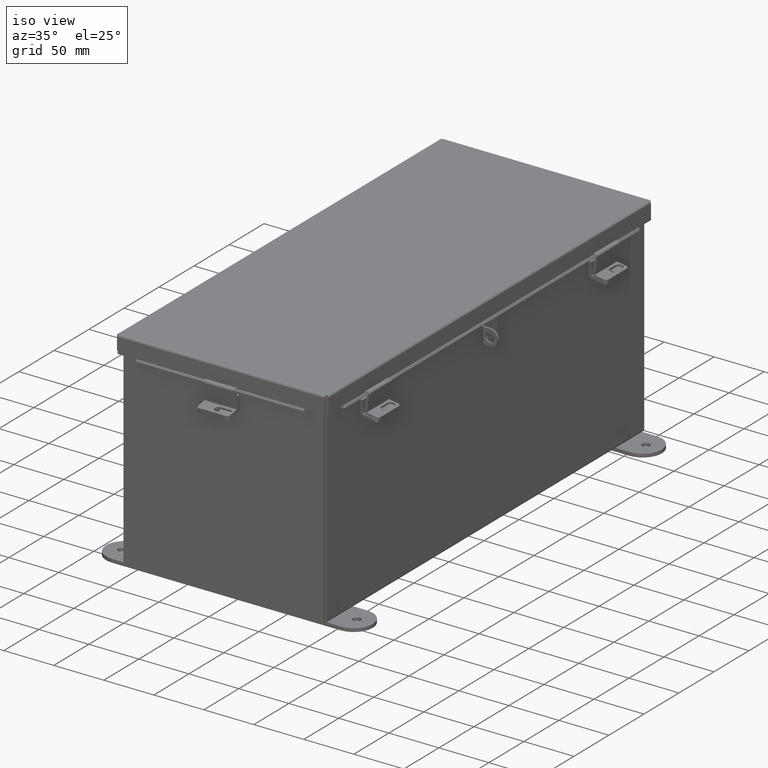
[diagram: clean part render]
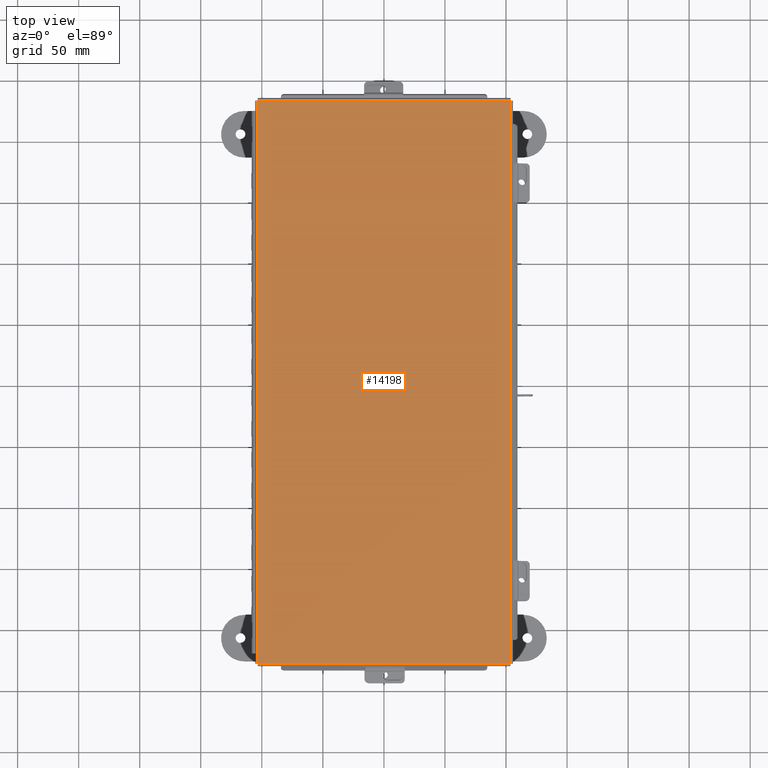
[diagram: tour spotlight — one face highlighted and labeled with its STEP entity id]
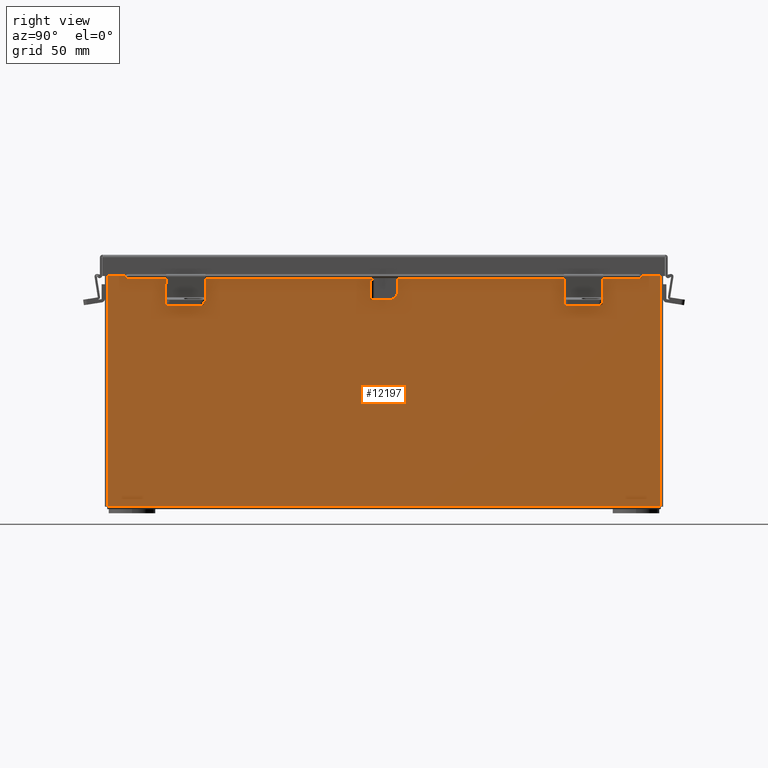
[diagram: tour spotlight — one face highlighted and labeled with its STEP entity id]
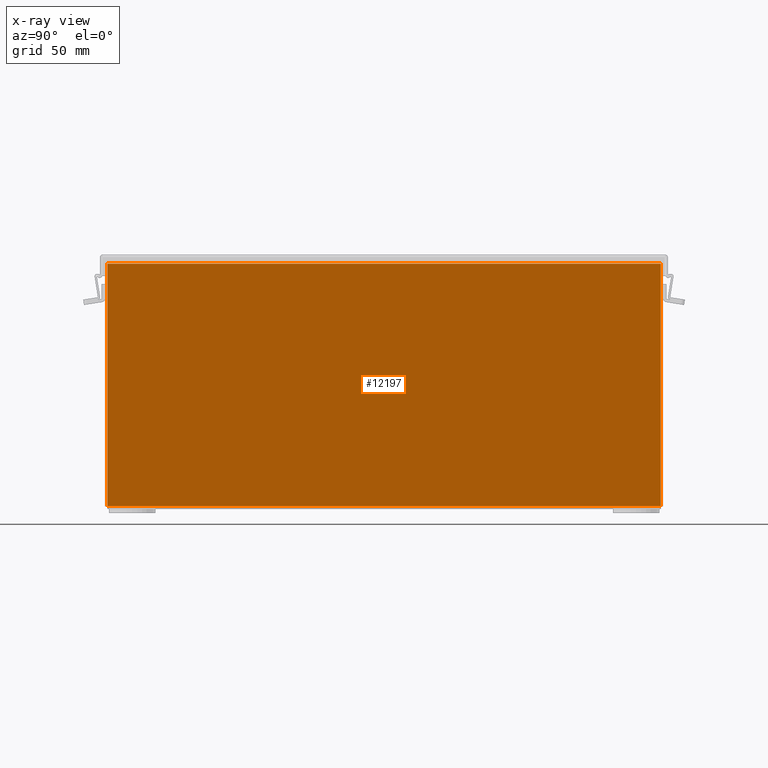
[diagram: x-ray of the same camera — body ghosted, this tour face saturated]
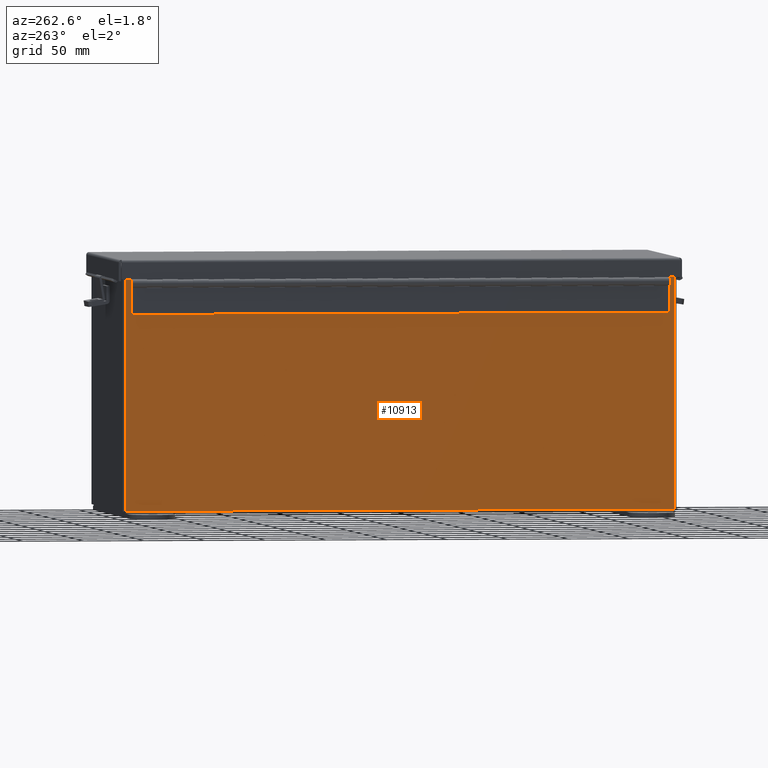
[diagram: tour spotlight — one face highlighted and labeled with its STEP entity id]
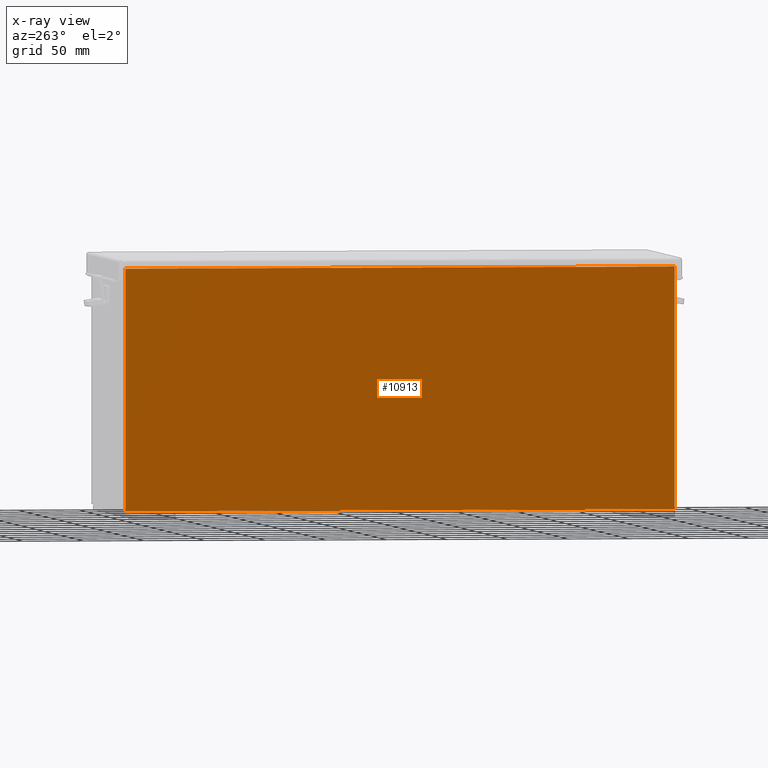
[diagram: x-ray of the same camera — body ghosted, this tour face saturated]
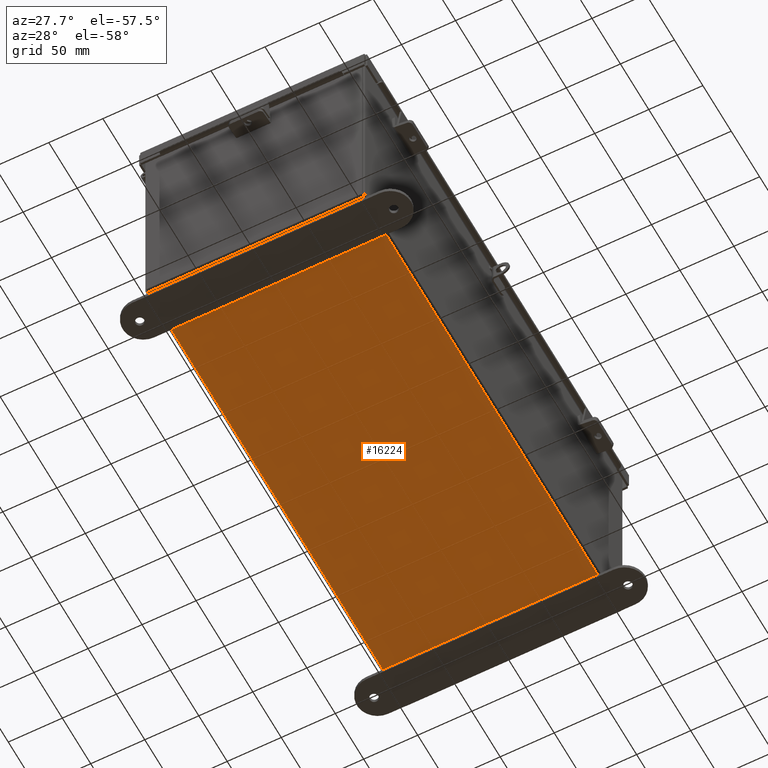
[diagram: tour spotlight — one face highlighted and labeled with its STEP entity id]
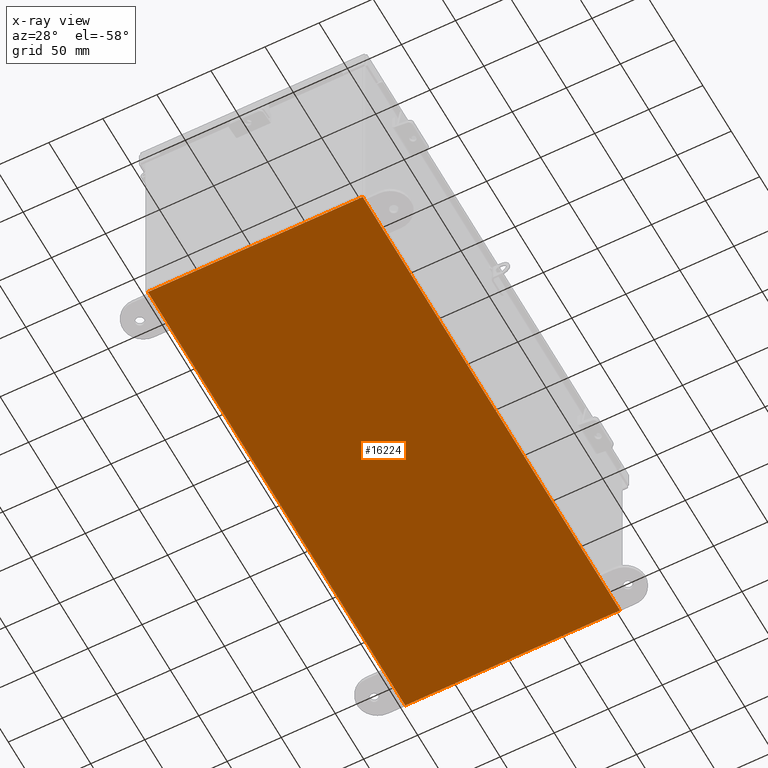
[diagram: x-ray of the same camera — body ghosted, this tour face saturated]
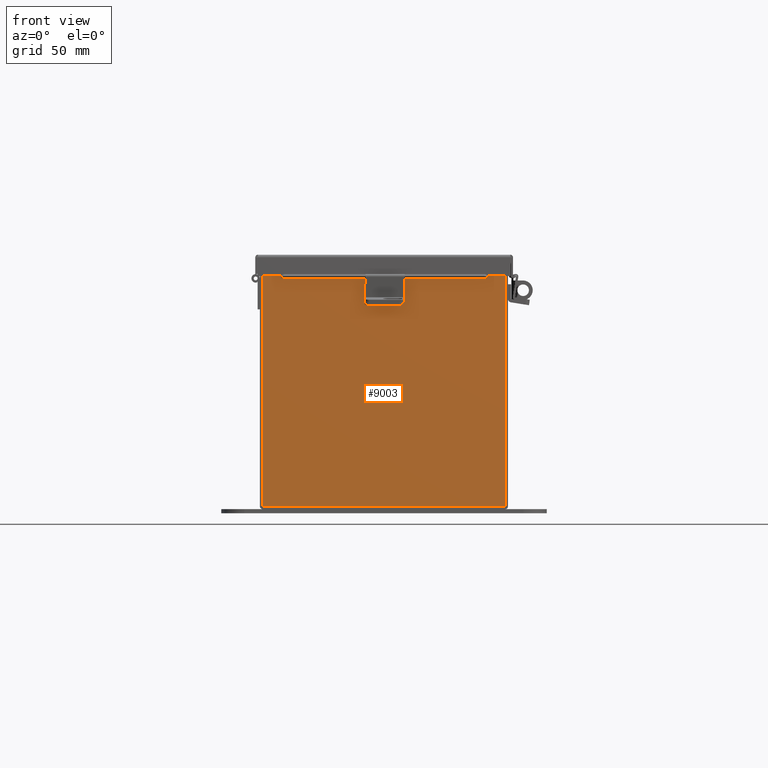
[diagram: tour spotlight — one face highlighted and labeled with its STEP entity id]
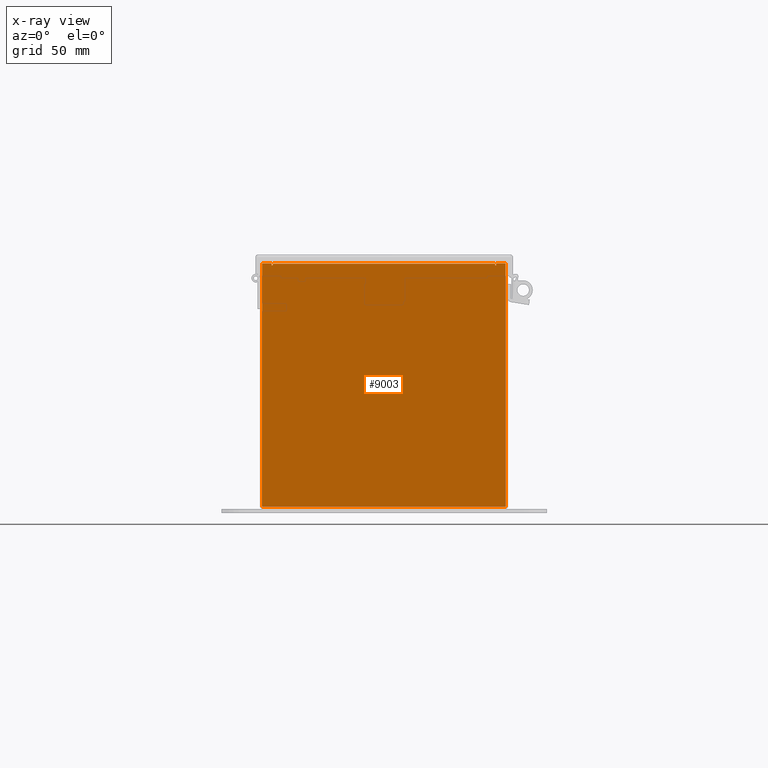
[diagram: x-ray of the same camera — body ghosted, this tour face saturated]
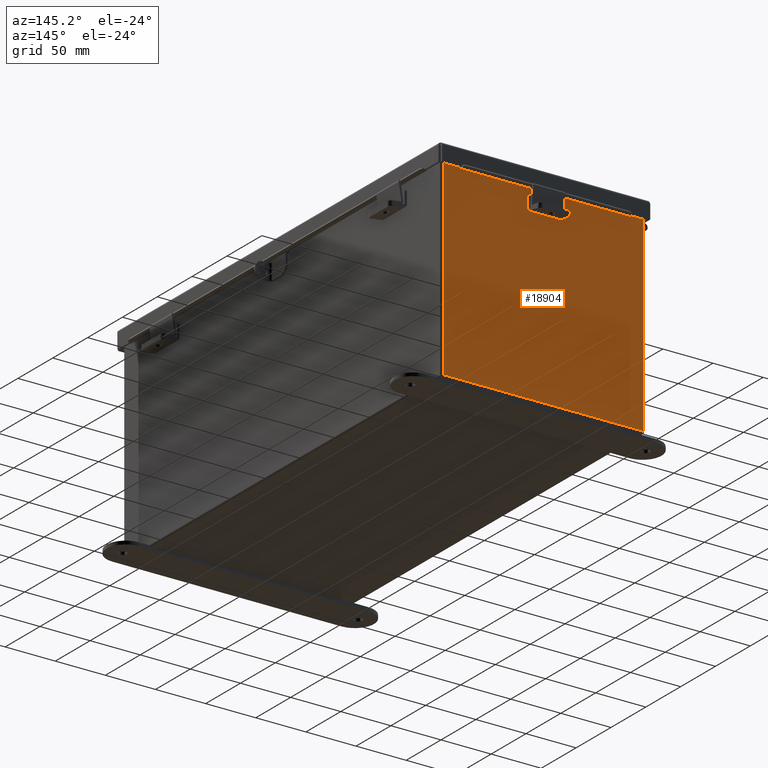
[diagram: tour spotlight — one face highlighted and labeled with its STEP entity id]
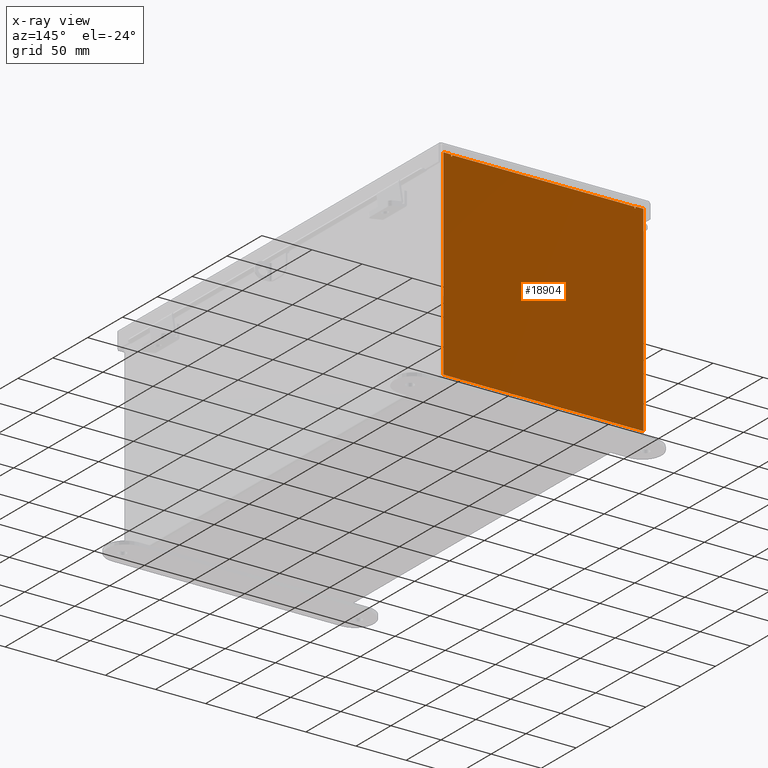
[diagram: x-ray of the same camera — body ghosted, this tour face saturated]
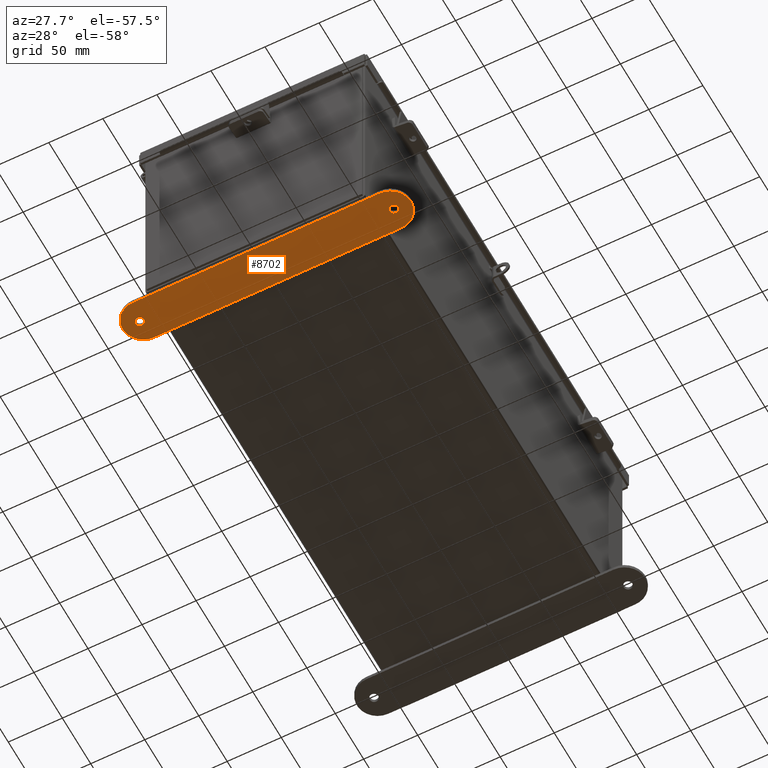
[diagram: tour spotlight — one face highlighted and labeled with its STEP entity id]
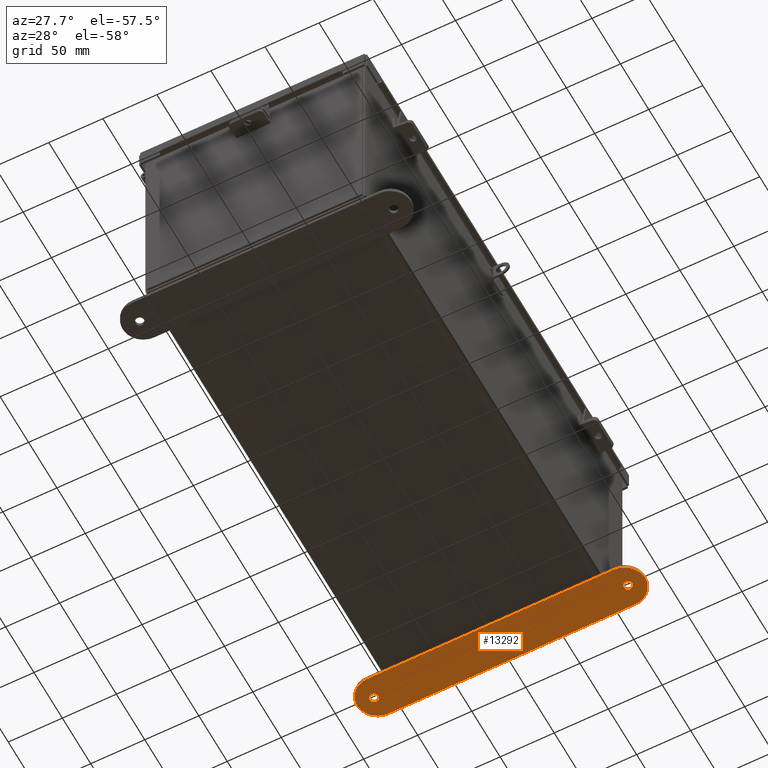
[diagram: tour spotlight — one face highlighted and labeled with its STEP entity id]
A machine part: a face-by-face anatomy tour. The part has 744 B-rep faces; the first image is the clean iso view, then the 8 largest visible faces are spotlighted one at a time (largest first), each with its STEP entity span.

Face 1 — top view, entity #14198. In plain terms, the highlighted planar face has unit normal (-0, -0, 1).
Definition (entity closure, byte-faithful):
#123 = DIRECTION ( 'NONE',  ( 1.000000000000000000, 1.049351150792752600E-032, -0.0000000000000000000 ) ) ;
#1001 = EDGE_CURVE ( 'NONE', #18678, #9987, #7400, .T. ) ;
#1388 = DIRECTION ( 'NONE',  ( -1.000000000000000000, -1.049351150792752600E-032, -0.0000000000000000000 ) ) ;
#2243 = CARTESIAN_POINT ( 'NONE',  ( -4.068550000000001000, 9.068550000000000100, -0.07469999999999033000 ) ) ;
#2361 = ORIENTED_EDGE ( 'NONE', *, *, #17052, .T. ) ;
#3081 = CARTESIAN_POINT ( 'NONE',  ( 0.0000000000000000000, 0.0000000000000000000, -0.07470000000000015500 ) ) ;
#4551 = DIRECTION ( 'NONE',  ( -0.0000000000000000000, 0.0000000000000000000, -1.000000000000000000 ) ) ;
#4719 = CARTESIAN_POINT ( 'NONE',  ( 4.068549999999999200, 9.068550000000000100, -0.07469999999999907300 ) ) ;
#4989 = FACE_OUTER_BOUND ( 'NONE', #8496, .T. ) ;
#6009 = PLANE ( 'NONE',  #8393 ) ;
#7397 = DIRECTION ( 'NONE',  ( 1.049351150792752600E-032, 1.000000000000000000, -0.0000000000000000000 ) ) ;
#7400 = LINE ( 'NONE', #8382, #14805 ) ;
#8191 = LINE ( 'NONE', #13311, #15582 ) ;
#8382 = CARTESIAN_POINT ( 'NONE',  ( 4.068549999999999200, 9.074478932188133800, -0.07469999999999907300 ) ) ;
#8393 = AXIS2_PLACEMENT_3D ( 'NONE', #3081, #4551, #14977 ) ;
#8496 = EDGE_LOOP ( 'NONE', ( #15341, #12577, #13697, #2361 ) ) ;
#8658 = VECTOR ( 'NONE', #7397, 39.37007874015748100 ) ;
#8946 = VECTOR ( 'NONE', #123, 39.37007874015748100 ) ;
#9129 = LINE ( 'NONE', #16272, #8658 ) ;
#9987 = VERTEX_POINT ( 'NONE', #11261 ) ;
#10242 = EDGE_CURVE ( 'NONE', #9987, #15605, #8191, .T. ) ;
#11261 = CARTESIAN_POINT ( 'NONE',  ( 4.068550000000000100, -9.068550000000000100, -0.07469999999999907300 ) ) ;
#12577 = ORIENTED_EDGE ( 'NONE', *, *, #1001, .T. ) ;
#13311 = CARTESIAN_POINT ( 'NONE',  ( 4.074478932188135600, -9.068550000000000100, -0.07469999999999797600 ) ) ;
#13697 = ORIENTED_EDGE ( 'NONE', *, *, #10242, .T. ) ;
#14198 = ADVANCED_FACE ( 'NONE', ( #4989 ), #6009, .T. ) ;
#14805 = VECTOR ( 'NONE', #18744, 39.37007874015748100 ) ;
#14937 = CARTESIAN_POINT ( 'NONE',  ( -4.074478932188136500, 9.068550000000000100, -0.07469999999999907300 ) ) ;
#14977 = DIRECTION ( 'NONE',  ( -1.000000000000000000, -1.049351150792752600E-032, 0.0000000000000000000 ) ) ;
#15341 = ORIENTED_EDGE ( 'NONE', *, *, #15345, .T. ) ;
#15345 = EDGE_CURVE ( 'NONE', #16733, #18678, #16815, .T. ) ;
#15582 = VECTOR ( 'NONE', #1388, 39.37007874015748100 ) ;
#15605 = VERTEX_POINT ( 'NONE', #15649 ) ;
#15649 = CARTESIAN_POINT ( 'NONE',  ( -4.068550000000000100, -9.068550000000000100, -0.07470000000000015500 ) ) ;
#16272 = CARTESIAN_POINT ( 'NONE',  ( -4.068550000000005400, -9.074478932188133800, -0.07470000000000015500 ) ) ;
#16733 = VERTEX_POINT ( 'NONE', #2243 ) ;
#16815 = LINE ( 'NONE', #14937, #8946 ) ;
#17052 = EDGE_CURVE ( 'NONE', #15605, #16733, #9129, .T. ) ;
#18678 = VERTEX_POINT ( 'NONE', #4719 ) ;
#18744 = DIRECTION ( 'NONE',  ( -1.049351150792752600E-032, -1.000000000000000000, -0.0000000000000000000 ) ) ;

Face 2 — right view, entity #12197. An x-ray twin of the same camera follows (body ghosted, this face saturated) — the face is partly hidden behind the body. In plain terms, the highlighted planar face has unit normal (-1, 0, 0).
Definition (entity closure, byte-faithful):
#8 = AXIS2_PLACEMENT_3D ( 'NONE', #446, #13839, #4911 ) ;
#10 = EDGE_LOOP ( 'NONE', ( #4414, #6023, #12530, #12437 ) ) ;
#252 = LINE ( 'NONE', #16197, #11217 ) ;
#390 = VERTEX_POINT ( 'NONE', #14026 ) ;
#446 = CARTESIAN_POINT ( 'NONE',  ( 4.000000000000000900, 0.0000000000000000000, -1.417999849211356600E-014 ) ) ;
#546 = CARTESIAN_POINT ( 'NONE',  ( 4.000000000000000900, -8.925300000000001800, -1.417999849211356600E-014 ) ) ;
#1106 = FACE_OUTER_BOUND ( 'NONE', #10, .T. ) ;
#1240 = CARTESIAN_POINT ( 'NONE',  ( 4.000000000000000900, 8.925299999999998200, 0.01299999999999984300 ) ) ;
#4354 = DIRECTION ( 'NONE',  ( -0.0000000000000000000, -1.000000000000000000, -0.0000000000000000000 ) ) ;
#4414 = ORIENTED_EDGE ( 'NONE', *, *, #10272, .T. ) ;
#4911 = DIRECTION ( 'NONE',  ( 3.479795166820706300E-015, 0.0000000000000000000, 1.000000000000000000 ) ) ;
#6023 = ORIENTED_EDGE ( 'NONE', *, *, #13002, .T. ) ;
#6154 = CARTESIAN_POINT ( 'NONE',  ( 4.000000000000000900, 8.925299999999998200, -1.293359284500424600E-014 ) ) ;
#6386 = EDGE_CURVE ( 'NONE', #11420, #390, #12079, .T. ) ;
#8127 = VECTOR ( 'NONE', #10676, 39.37007874015748100 ) ;
#8339 = VECTOR ( 'NONE', #10992, 39.37007874015748100 ) ;
#9638 = EDGE_CURVE ( 'NONE', #11420, #10893, #14449, .T. ) ;
#9888 = VERTEX_POINT ( 'NONE', #18624 ) ;
#10272 = EDGE_CURVE ( 'NONE', #390, #9888, #252, .T. ) ;
#10543 = VECTOR ( 'NONE', #16553, 39.37007874015748100 ) ;
#10676 = DIRECTION ( 'NONE',  ( 3.479795166820706300E-015, -1.391918066728282600E-016, 1.000000000000000000 ) ) ;
#10893 = VERTEX_POINT ( 'NONE', #11799 ) ;
#10992 = DIRECTION ( 'NONE',  ( -3.479795166820706300E-015, 0.0000000000000000000, -1.000000000000000000 ) ) ;
#11217 = VECTOR ( 'NONE', #4354, 39.37007874015748100 ) ;
#11420 = VERTEX_POINT ( 'NONE', #1240 ) ;
#11799 = CARTESIAN_POINT ( 'NONE',  ( 4.000000000000000900, -8.925300000000001800, 0.01299999999999984300 ) ) ;
#12079 = LINE ( 'NONE', #6154, #8127 ) ;
#12197 = ADVANCED_FACE ( 'NONE', ( #1106 ), #18260, .F. ) ;
#12437 = ORIENTED_EDGE ( 'NONE', *, *, #6386, .T. ) ;
#12530 = ORIENTED_EDGE ( 'NONE', *, *, #9638, .F. ) ;
#13002 = EDGE_CURVE ( 'NONE', #9888, #10893, #15276, .T. ) ;
#13839 = DIRECTION ( 'NONE',  ( -1.000000000000000000, 0.0000000000000000000, 3.479795166820706300E-015 ) ) ;
#14026 = CARTESIAN_POINT ( 'NONE',  ( 4.000000000000027500, 8.925299999999989400, 7.837599999999999200 ) ) ;
#14449 = LINE ( 'NONE', #16473, #10543 ) ;
#15276 = LINE ( 'NONE', #546, #8339 ) ;
#16197 = CARTESIAN_POINT ( 'NONE',  ( 4.000000000000027500, 8.925299999999996500, 7.837599999999999200 ) ) ;
#16473 = CARTESIAN_POINT ( 'NONE',  ( 4.000000000000000900, -8.925300000000001800, 0.01299999999999984300 ) ) ;
#16553 = DIRECTION ( 'NONE',  ( -0.0000000000000000000, -1.000000000000000000, -0.0000000000000000000 ) ) ;
#18260 = PLANE ( 'NONE',  #8 ) ;
#18624 = CARTESIAN_POINT ( 'NONE',  ( 4.000000000000027500, -8.925300000000000000, 7.837599999999999200 ) ) ;

Face 3 — auxiliary view, entity #10913. An x-ray twin of the same camera follows (body ghosted, this face saturated) — the face is partly hidden behind the body. In plain terms, the highlighted planar face has unit normal (1, 0, 0).
Definition (entity closure, byte-faithful):
#796 = VECTOR ( 'NONE', #13601, 39.37007874015748100 ) ;
#1430 = DIRECTION ( 'NONE',  ( 3.479795166820705900E-015, 0.0000000000000000000, -1.000000000000000000 ) ) ;
#1632 = EDGE_CURVE ( 'NONE', #8863, #2555, #9010, .T. ) ;
#2420 = EDGE_CURVE ( 'NONE', #8863, #9973, #12696, .T. ) ;
#2555 = VERTEX_POINT ( 'NONE', #13899 ) ;
#3496 = EDGE_CURVE ( 'NONE', #5349, #2555, #12916, .T. ) ;
#4469 = CARTESIAN_POINT ( 'NONE',  ( -3.999999999999999600, 8.925299999999996500, -1.417999849211356600E-014 ) ) ;
#5349 = VERTEX_POINT ( 'NONE', #6842 ) ;
#5498 = ORIENTED_EDGE ( 'NONE', *, *, #1632, .F. ) ;
#5977 = DIRECTION ( 'NONE',  ( 3.479795166820706300E-015, 0.0000000000000000000, -1.000000000000000000 ) ) ;
#6597 = ORIENTED_EDGE ( 'NONE', *, *, #18188, .T. ) ;
#6807 = ORIENTED_EDGE ( 'NONE', *, *, #3496, .T. ) ;
#6808 = CARTESIAN_POINT ( 'NONE',  ( -3.999999999999999600, 8.925299999999996500, 0.01299999999999984300 ) ) ;
#6842 = CARTESIAN_POINT ( 'NONE',  ( -4.000000000000026600, 8.925299999999996500, 7.837599999999999200 ) ) ;
#7583 = VECTOR ( 'NONE', #5977, 39.37007874015748100 ) ;
#8203 = CARTESIAN_POINT ( 'NONE',  ( -4.000000000000027500, -8.925299999999992900, 7.837599999999999200 ) ) ;
#8863 = VERTEX_POINT ( 'NONE', #8995 ) ;
#8884 = PLANE ( 'NONE',  #15174 ) ;
#8995 = CARTESIAN_POINT ( 'NONE',  ( -3.999999999999999600, -8.925299999999998200, 0.01300000000000039000 ) ) ;
#9010 = LINE ( 'NONE', #6808, #12491 ) ;
#9823 = FACE_OUTER_BOUND ( 'NONE', #14693, .T. ) ;
#9973 = VERTEX_POINT ( 'NONE', #8203 ) ;
#10383 = DIRECTION ( 'NONE',  ( 1.000000000000000000, 0.0000000000000000000, 3.479795166820705900E-015 ) ) ;
#10913 = ADVANCED_FACE ( 'NONE', ( #9823 ), #8884, .F. ) ;
#11310 = DIRECTION ( 'NONE',  ( 1.065092651769884500E-031, 1.000000000000000000, -3.060791226809479400E-017 ) ) ;
#12491 = VECTOR ( 'NONE', #11310, 39.37007874015748100 ) ;
#12696 = LINE ( 'NONE', #18014, #796 ) ;
#12916 = LINE ( 'NONE', #4469, #7583 ) ;
#13601 = DIRECTION ( 'NONE',  ( -3.479795166820706300E-015, 1.391918066728282600E-016, 1.000000000000000000 ) ) ;
#13899 = CARTESIAN_POINT ( 'NONE',  ( -3.999999999999999600, 8.925299999999996500, 0.01300000000000011600 ) ) ;
#14693 = EDGE_LOOP ( 'NONE', ( #6597, #6807, #5498, #18629 ) ) ;
#15174 = AXIS2_PLACEMENT_3D ( 'NONE', #19246, #10383, #1430 ) ;
#16147 = CARTESIAN_POINT ( 'NONE',  ( -4.000000000000027500, -8.925299999999996500, 7.837599999999999200 ) ) ;
#17174 = VECTOR ( 'NONE', #17666, 39.37007874015748100 ) ;
#17666 = DIRECTION ( 'NONE',  ( 0.0000000000000000000, 1.000000000000000000, 0.0000000000000000000 ) ) ;
#18014 = CARTESIAN_POINT ( 'NONE',  ( -3.999999999999999600, -8.925299999999998200, -1.293359284500424600E-014 ) ) ;
#18125 = LINE ( 'NONE', #16147, #17174 ) ;
#18188 = EDGE_CURVE ( 'NONE', #9973, #5349, #18125, .T. ) ;
#18629 = ORIENTED_EDGE ( 'NONE', *, *, #2420, .T. ) ;
#19246 = CARTESIAN_POINT ( 'NONE',  ( -3.999999999999999600, 0.0000000000000000000, -1.417999849211356600E-014 ) ) ;

Face 4 — auxiliary view, entity #16224. An x-ray twin of the same camera follows (body ghosted, this face saturated) — the face is partly hidden behind the body. In plain terms, the highlighted planar face has unit normal (0, 0, -1).
Definition (entity closure, byte-faithful):
#387 = LINE ( 'NONE', #8184, #7865 ) ;
#402 = LINE ( 'NONE', #16796, #11824 ) ;
#606 = VECTOR ( 'NONE', #9654, 39.37007874015748100 ) ;
#729 = DIRECTION ( 'NONE',  ( -1.000000000000000000, -0.0000000000000000000, -0.0000000000000000000 ) ) ;
#878 = CARTESIAN_POINT ( 'NONE',  ( 0.0000000000000000000, 0.0000000000000000000, -0.07470000000000000300 ) ) ;
#1069 = VERTEX_POINT ( 'NONE', #17370 ) ;
#1344 = CARTESIAN_POINT ( 'NONE',  ( 3.912300000000000100, 8.925299999999998200, -0.07469999999999994700 ) ) ;
#1906 = FACE_OUTER_BOUND ( 'NONE', #9585, .T. ) ;
#1978 = DIRECTION ( 'NONE',  ( -0.0000000000000000000, -1.000000000000000000, -0.0000000000000000000 ) ) ;
#2244 = ORIENTED_EDGE ( 'NONE', *, *, #12981, .T. ) ;
#4257 = EDGE_CURVE ( 'NONE', #5786, #15392, #14000, .T. ) ;
#4260 = ORIENTED_EDGE ( 'NONE', *, *, #7157, .F. ) ;
#5363 = DIRECTION ( 'NONE',  ( 0.0000000000000000000, 0.0000000000000000000, -1.000000000000000000 ) ) ;
#5786 = VERTEX_POINT ( 'NONE', #18149 ) ;
#6168 = CARTESIAN_POINT ( 'NONE',  ( 3.912300000000000100, -8.925300000000001800, -0.07470000000000000300 ) ) ;
#6298 = ORIENTED_EDGE ( 'NONE', *, *, #13692, .T. ) ;
#6824 = PLANE ( 'NONE',  #15636 ) ;
#7157 = EDGE_CURVE ( 'NONE', #13882, #1069, #387, .T. ) ;
#7414 = DIRECTION ( 'NONE',  ( 1.000000000000000000, -1.365923996832131600E-016, 0.0000000000000000000 ) ) ;
#7865 = VECTOR ( 'NONE', #729, 39.37007874015748100 ) ;
#8184 = CARTESIAN_POINT ( 'NONE',  ( -3.999999999999999600, 8.925299999999998200, -0.07470000000000000300 ) ) ;
#9585 = EDGE_LOOP ( 'NONE', ( #4260, #2244, #11666, #6298 ) ) ;
#9654 = DIRECTION ( 'NONE',  ( -0.0000000000000000000, 1.000000000000000000, -0.0000000000000000000 ) ) ;
#11666 = ORIENTED_EDGE ( 'NONE', *, *, #4257, .F. ) ;
#11824 = VECTOR ( 'NONE', #1978, 39.37007874015748100 ) ;
#12981 = EDGE_CURVE ( 'NONE', #13882, #15392, #402, .T. ) ;
#13692 = EDGE_CURVE ( 'NONE', #5786, #1069, #16411, .T. ) ;
#13882 = VERTEX_POINT ( 'NONE', #1344 ) ;
#14000 = LINE ( 'NONE', #16290, #17963 ) ;
#15392 = VERTEX_POINT ( 'NONE', #6168 ) ;
#15636 = AXIS2_PLACEMENT_3D ( 'NONE', #878, #5363, #15755 ) ;
#15755 = DIRECTION ( 'NONE',  ( -1.000000000000000000, 0.0000000000000000000, -0.0000000000000000000 ) ) ;
#16224 = ADVANCED_FACE ( 'NONE', ( #1906 ), #6824, .T. ) ;
#16290 = CARTESIAN_POINT ( 'NONE',  ( -3.999999999999999600, -8.925300000000001800, -0.07470000000000000300 ) ) ;
#16411 = LINE ( 'NONE', #17025, #606 ) ;
#16796 = CARTESIAN_POINT ( 'NONE',  ( 3.912300000000000100, 8.925300000000000000, -0.07469999999999994700 ) ) ;
#17025 = CARTESIAN_POINT ( 'NONE',  ( -3.912299999999999200, -8.925299999999998200, -0.07469999999999966900 ) ) ;
#17370 = CARTESIAN_POINT ( 'NONE',  ( -3.912299999999999200, 8.925299999999998200, -0.07470000000000000300 ) ) ;
#17963 = VECTOR ( 'NONE', #7414, 39.37007874015748100 ) ;
#18149 = CARTESIAN_POINT ( 'NONE',  ( -3.912299999999999200, -8.925299999999996500, -0.07469999999999966900 ) ) ;

Face 5 — front view, entity #9003. An x-ray twin of the same camera follows (body ghosted, this face saturated) — the face is partly hidden behind the body. In plain terms, the highlighted planar face has unit normal (-0, 1, -0).
Definition (entity closure, byte-faithful):
#92 = EDGE_LOOP ( 'NONE', ( #2113, #5645, #4857, #1739, #471, #18941, #1543, #10982, #664, #7654, #3554, #10332 ) ) ;
#129 = DIRECTION ( 'NONE',  ( -1.000000000000000000, -5.526334185345597900E-031, 0.0000000000000000000 ) ) ;
#352 = EDGE_CURVE ( 'NONE', #10473, #13017, #2684, .T. ) ;
#374 = DIRECTION ( 'NONE',  ( 0.0000000000000000000, 0.0000000000000000000, -1.000000000000000000 ) ) ;
#458 = VERTEX_POINT ( 'NONE', #18640 ) ;
#471 = ORIENTED_EDGE ( 'NONE', *, *, #1799, .F. ) ;
#664 = ORIENTED_EDGE ( 'NONE', *, *, #7302, .T. ) ;
#971 = FACE_OUTER_BOUND ( 'NONE', #92, .T. ) ;
#1111 = DIRECTION ( 'NONE',  ( 1.000000000000000000, 5.526334185345597900E-031, 0.0000000000000000000 ) ) ;
#1543 = ORIENTED_EDGE ( 'NONE', *, *, #11533, .F. ) ;
#1739 = ORIENTED_EDGE ( 'NONE', *, *, #3318, .T. ) ;
#1790 = EDGE_CURVE ( 'NONE', #8808, #2328, #18059, .T. ) ;
#1799 = EDGE_CURVE ( 'NONE', #2328, #17046, #6193, .T. ) ;
#2012 = LINE ( 'NONE', #9985, #13430 ) ;
#2113 = ORIENTED_EDGE ( 'NONE', *, *, #6231, .F. ) ;
#2219 = CARTESIAN_POINT ( 'NONE',  ( -3.925300000000005300, 0.0000000000000000000, 3.925300000000000500 ) ) ;
#2328 = VERTEX_POINT ( 'NONE', #7432 ) ;
#2684 = CIRCLE ( 'NONE', #3849, 0.01867500000000003900 ) ;
#3117 = VERTEX_POINT ( 'NONE', #8791 ) ;
#3155 = VECTOR ( 'NONE', #14573, 39.37007874015748100 ) ;
#3200 = EDGE_CURVE ( 'NONE', #16240, #10473, #4282, .T. ) ;
#3318 = EDGE_CURVE ( 'NONE', #16240, #17046, #18262, .T. ) ;
#3411 = VERTEX_POINT ( 'NONE', #16173 ) ;
#3554 = ORIENTED_EDGE ( 'NONE', *, *, #13970, .T. ) ;
#3849 = AXIS2_PLACEMENT_3D ( 'NONE', #16933, #8066, #18453 ) ;
#3954 = LINE ( 'NONE', #13055, #6067 ) ;
#4282 = LINE ( 'NONE', #14933, #15678 ) ;
#4294 = VECTOR ( 'NONE', #16423, 39.37007874015748100 ) ;
#4513 = DIRECTION ( 'NONE',  ( 0.0000000000000000000, 0.0000000000000000000, -1.000000000000000000 ) ) ;
#4767 = EDGE_CURVE ( 'NONE', #14151, #3411, #3954, .T. ) ;
#4776 = CARTESIAN_POINT ( 'NONE',  ( 0.0000000000000000000, 0.0000000000000000000, 0.0000000000000000000 ) ) ;
#4857 = ORIENTED_EDGE ( 'NONE', *, *, #3200, .F. ) ;
#5279 = EDGE_CURVE ( 'NONE', #3117, #11770, #18384, .T. ) ;
#5453 = DIRECTION ( 'NONE',  ( 0.0000000000000000000, 0.0000000000000000000, -1.000000000000000000 ) ) ;
#5645 = ORIENTED_EDGE ( 'NONE', *, *, #352, .F. ) ;
#5667 = CARTESIAN_POINT ( 'NONE',  ( 3.600974999999999100, 9.834652777191348400E-015, 3.874949999999999200 ) ) ;
#5755 = DIRECTION ( 'NONE',  ( 0.0000000000000000000, 0.0000000000000000000, 1.000000000000000000 ) ) ;
#5938 = CARTESIAN_POINT ( 'NONE',  ( 3.619649999999995100, 9.834652777191348400E-015, 3.925300000000000500 ) ) ;
#6067 = VECTOR ( 'NONE', #1111, 39.37007874015748100 ) ;
#6069 = DIRECTION ( 'NONE',  ( -2.170286390199978800E-014, -8.874685183736382800E-031, -1.000000000000000000 ) ) ;
#6193 = LINE ( 'NONE', #19084, #3155 ) ;
#6231 = EDGE_CURVE ( 'NONE', #13017, #11770, #6937, .T. ) ;
#6339 = CARTESIAN_POINT ( 'NONE',  ( -3.582300000000000000, 0.0000000000000000000, 3.874949999999999200 ) ) ;
#6431 = AXIS2_PLACEMENT_3D ( 'NONE', #4776, #9334, #374 ) ;
#6713 = DIRECTION ( 'NONE',  ( 1.000000000000000000, 5.526334185345597900E-031, 0.0000000000000000000 ) ) ;
#6937 = LINE ( 'NONE', #7295, #10463 ) ;
#6980 = VECTOR ( 'NONE', #6069, 39.37007874015748100 ) ;
#7194 = DIRECTION ( 'NONE',  ( 0.0000000000000000000, 0.0000000000000000000, -1.000000000000000000 ) ) ;
#7295 = CARTESIAN_POINT ( 'NONE',  ( -3.619650000000005400, 0.0000000000000000000, 0.0000000000000000000 ) ) ;
#7302 = EDGE_CURVE ( 'NONE', #3411, #458, #2012, .T. ) ;
#7432 = CARTESIAN_POINT ( 'NONE',  ( 3.582299999999999200, 9.834652777191348400E-015, 3.874949999999999200 ) ) ;
#7447 = LINE ( 'NONE', #7567, #10942 ) ;
#7567 = CARTESIAN_POINT ( 'NONE',  ( -3.925300000000005300, 0.0000000000000000000, -3.925299999999999600 ) ) ;
#7654 = ORIENTED_EDGE ( 'NONE', *, *, #12023, .T. ) ;
#8066 = DIRECTION ( 'NONE',  ( 5.526334185345597900E-031, 1.000000000000000000, -0.0000000000000000000 ) ) ;
#8331 = CARTESIAN_POINT ( 'NONE',  ( -3.582300000000004900, 1.092739197465705300E-015, 3.912299999999999200 ) ) ;
#8791 = CARTESIAN_POINT ( 'NONE',  ( -3.925300000000005300, 0.0000000000000000000, 3.925300000000000500 ) ) ;
#8808 = VERTEX_POINT ( 'NONE', #11848 ) ;
#9003 = ADVANCED_FACE ( 'NONE', ( #971 ), #12234, .F. ) ;
#9058 = CARTESIAN_POINT ( 'NONE',  ( -3.925300000000005300, 0.0000000000000000000, 3.925300000000000500 ) ) ;
#9250 = DIRECTION ( 'NONE',  ( 1.000000000000000000, 5.526334185345597900E-031, -0.0000000000000000000 ) ) ;
#9334 = DIRECTION ( 'NONE',  ( -5.526334185345597900E-031, -1.000000000000000000, -0.0000000000000000000 ) ) ;
#9985 = CARTESIAN_POINT ( 'NONE',  ( 3.925299999999994200, 9.834652777191348400E-015, 3.925299999999999100 ) ) ;
#10332 = ORIENTED_EDGE ( 'NONE', *, *, #5279, .T. ) ;
#10393 = VECTOR ( 'NONE', #9250, 39.37007874015748100 ) ;
#10463 = VECTOR ( 'NONE', #5755, 39.37007874015748100 ) ;
#10473 = VERTEX_POINT ( 'NONE', #6339 ) ;
#10509 = VECTOR ( 'NONE', #6713, 39.37007874015748100 ) ;
#10759 = CARTESIAN_POINT ( 'NONE',  ( -3.582300000000004900, 1.092739197465705300E-015, 3.912299999999999200 ) ) ;
#10942 = VECTOR ( 'NONE', #129, 39.37007874015748100 ) ;
#10982 = ORIENTED_EDGE ( 'NONE', *, *, #4767, .T. ) ;
#11314 = AXIS2_PLACEMENT_3D ( 'NONE', #5667, #16066, #7194 ) ;
#11533 = EDGE_CURVE ( 'NONE', #14151, #8808, #15343, .T. ) ;
#11770 = VERTEX_POINT ( 'NONE', #18782 ) ;
#11801 = VERTEX_POINT ( 'NONE', #17277 ) ;
#11848 = CARTESIAN_POINT ( 'NONE',  ( 3.619649999999999100, 9.834652777191348400E-015, 3.874949999999999200 ) ) ;
#12023 = EDGE_CURVE ( 'NONE', #458, #11801, #7447, .T. ) ;
#12234 = PLANE ( 'NONE',  #6431 ) ;
#13017 = VERTEX_POINT ( 'NONE', #15419 ) ;
#13055 = CARTESIAN_POINT ( 'NONE',  ( -3.925300000000005300, 0.0000000000000000000, 3.925300000000000500 ) ) ;
#13430 = VECTOR ( 'NONE', #5453, 39.37007874015748100 ) ;
#13970 = EDGE_CURVE ( 'NONE', #11801, #3117, #16167, .T. ) ;
#14151 = VERTEX_POINT ( 'NONE', #5938 ) ;
#14573 = DIRECTION ( 'NONE',  ( 0.0000000000000000000, 0.0000000000000000000, 1.000000000000000000 ) ) ;
#14933 = CARTESIAN_POINT ( 'NONE',  ( -3.582300000000004900, 0.0000000000000000000, 0.0000000000000000000 ) ) ;
#15343 = LINE ( 'NONE', #16454, #6980 ) ;
#15419 = CARTESIAN_POINT ( 'NONE',  ( -3.619650000000000500, 0.0000000000000000000, 3.874949999999999200 ) ) ;
#15678 = VECTOR ( 'NONE', #4513, 39.37007874015748100 ) ;
#16066 = DIRECTION ( 'NONE',  ( 5.526334185345597900E-031, 1.000000000000000000, -0.0000000000000000000 ) ) ;
#16167 = LINE ( 'NONE', #9058, #4294 ) ;
#16173 = CARTESIAN_POINT ( 'NONE',  ( 3.925299999999994200, 9.834652777191348400E-015, 3.925299999999999100 ) ) ;
#16240 = VERTEX_POINT ( 'NONE', #8331 ) ;
#16423 = DIRECTION ( 'NONE',  ( 0.0000000000000000000, 0.0000000000000000000, 1.000000000000000000 ) ) ;
#16454 = CARTESIAN_POINT ( 'NONE',  ( 3.619649999999910300, 0.0000000000000000000, -7.867722221753078700E-014 ) ) ;
#16933 = CARTESIAN_POINT ( 'NONE',  ( -3.600975000000000000, 0.0000000000000000000, 3.874949999999999200 ) ) ;
#17046 = VERTEX_POINT ( 'NONE', #17718 ) ;
#17277 = CARTESIAN_POINT ( 'NONE',  ( -3.925300000000005300, 0.0000000000000000000, -3.925299999999999600 ) ) ;
#17718 = CARTESIAN_POINT ( 'NONE',  ( 3.582299999999994300, 9.834652777191348400E-015, 3.912299999999999200 ) ) ;
#18059 = CIRCLE ( 'NONE', #11314, 0.01867500000000003900 ) ;
#18262 = LINE ( 'NONE', #10759, #10393 ) ;
#18384 = LINE ( 'NONE', #2219, #10509 ) ;
#18453 = DIRECTION ( 'NONE',  ( 0.0000000000000000000, 0.0000000000000000000, -1.000000000000000000 ) ) ;
#18640 = CARTESIAN_POINT ( 'NONE',  ( 3.925299999999994200, 9.834652777191348400E-015, -3.925299999999999600 ) ) ;
#18782 = CARTESIAN_POINT ( 'NONE',  ( -3.619650000000005400, 0.0000000000000000000, 3.925299999999999100 ) ) ;
#18941 = ORIENTED_EDGE ( 'NONE', *, *, #1790, .F. ) ;
#19084 = CARTESIAN_POINT ( 'NONE',  ( 3.582299999999994300, 0.0000000000000000000, 4.917326388595674200E-015 ) ) ;

Face 6 — auxiliary view, entity #18904. An x-ray twin of the same camera follows (body ghosted, this face saturated) — the face is partly hidden behind the body. In plain terms, the highlighted planar face has unit normal (0, -1, 0).
Definition (entity closure, byte-faithful):
#63 = DIRECTION ( 'NONE',  ( 1.000000000000000000, 0.0000000000000000000, 0.0000000000000000000 ) ) ;
#249 = ORIENTED_EDGE ( 'NONE', *, *, #12946, .T. ) ;
#325 = LINE ( 'NONE', #3943, #9672 ) ;
#412 = ORIENTED_EDGE ( 'NONE', *, *, #10303, .F. ) ;
#670 = LINE ( 'NONE', #3747, #12101 ) ;
#706 = VECTOR ( 'NONE', #16330, 39.37007874015748100 ) ;
#1418 = CARTESIAN_POINT ( 'NONE',  ( -3.582300000000000000, 0.0000000000000000000, 0.0000000000000000000 ) ) ;
#1540 = DIRECTION ( 'NONE',  ( 1.000000000000000000, 0.0000000000000000000, 0.0000000000000000000 ) ) ;
#1641 = LINE ( 'NONE', #17576, #9589 ) ;
#1935 = LINE ( 'NONE', #16357, #13359 ) ;
#2053 = ORIENTED_EDGE ( 'NONE', *, *, #11423, .T. ) ;
#2085 = DIRECTION ( 'NONE',  ( 0.0000000000000000000, 0.0000000000000000000, 1.000000000000000000 ) ) ;
#2128 = CARTESIAN_POINT ( 'NONE',  ( -3.619650000000000500, 0.0000000000000000000, 3.925299999999999100 ) ) ;
#2745 = FACE_OUTER_BOUND ( 'NONE', #13730, .T. ) ;
#2936 = AXIS2_PLACEMENT_3D ( 'NONE', #13434, #4487, #14908 ) ;
#2950 = EDGE_CURVE ( 'NONE', #3359, #10000, #325, .T. ) ;
#3339 = CARTESIAN_POINT ( 'NONE',  ( -3.925300000000000500, 0.0000000000000000000, 3.925299999999999100 ) ) ;
#3359 = VERTEX_POINT ( 'NONE', #7172 ) ;
#3624 = VERTEX_POINT ( 'NONE', #4781 ) ;
#3716 = CIRCLE ( 'NONE', #2936, 0.01867500000000003900 ) ;
#3747 = CARTESIAN_POINT ( 'NONE',  ( -3.925300000000000500, 0.0000000000000000000, -3.925300000000000500 ) ) ;
#3795 = PLANE ( 'NONE',  #16304 ) ;
#3883 = ORIENTED_EDGE ( 'NONE', *, *, #4938, .T. ) ;
#3943 = CARTESIAN_POINT ( 'NONE',  ( 3.619649999999915200, 0.0000000000000000000, -7.867722221753078700E-014 ) ) ;
#4147 = ORIENTED_EDGE ( 'NONE', *, *, #8237, .T. ) ;
#4487 = DIRECTION ( 'NONE',  ( -0.0000000000000000000, 1.000000000000000000, -0.0000000000000000000 ) ) ;
#4501 = CARTESIAN_POINT ( 'NONE',  ( 3.582299999999999200, 0.0000000000000000000, 3.912299999999999200 ) ) ;
#4781 = CARTESIAN_POINT ( 'NONE',  ( 3.925299999999999100, 0.0000000000000000000, -3.925300000000000500 ) ) ;
#4800 = VECTOR ( 'NONE', #12270, 39.37007874015748100 ) ;
#4820 = EDGE_CURVE ( 'NONE', #15619, #9134, #1641, .T. ) ;
#4842 = CARTESIAN_POINT ( 'NONE',  ( 3.600974999999999100, 0.0000000000000000000, 3.874949999999999200 ) ) ;
#4938 = EDGE_CURVE ( 'NONE', #6710, #6329, #8657, .T. ) ;
#5088 = VERTEX_POINT ( 'NONE', #15166 ) ;
#5412 = AXIS2_PLACEMENT_3D ( 'NONE', #4842, #15247, #6369 ) ;
#5430 = DIRECTION ( 'NONE',  ( -2.170286390199978800E-014, 0.0000000000000000000, -1.000000000000000000 ) ) ;
#5482 = CARTESIAN_POINT ( 'NONE',  ( -3.925300000000000500, 0.0000000000000000000, 3.925299999999999100 ) ) ;
#5731 = CARTESIAN_POINT ( 'NONE',  ( 3.925299999999999100, 0.0000000000000000000, 3.925299999999999100 ) ) ;
#6329 = VERTEX_POINT ( 'NONE', #4501 ) ;
#6369 = DIRECTION ( 'NONE',  ( 0.0000000000000000000, 0.0000000000000000000, -1.000000000000000000 ) ) ;
#6561 = ORIENTED_EDGE ( 'NONE', *, *, #18024, .T. ) ;
#6604 = LINE ( 'NONE', #13337, #14043 ) ;
#6710 = VERTEX_POINT ( 'NONE', #15667 ) ;
#7172 = CARTESIAN_POINT ( 'NONE',  ( 3.619650000000000500, 0.0000000000000000000, 3.925299999999999100 ) ) ;
#7465 = CARTESIAN_POINT ( 'NONE',  ( -3.582300000000000000, 1.092739197465705300E-015, 3.912299999999999200 ) ) ;
#8032 = CARTESIAN_POINT ( 'NONE',  ( 3.582299999999999200, 0.0000000000000000000, 0.0000000000000000000 ) ) ;
#8237 = EDGE_CURVE ( 'NONE', #16297, #9134, #6604, .T. ) ;
#8271 = CARTESIAN_POINT ( 'NONE',  ( 0.0000000000000000000, 0.0000000000000000000, 0.0000000000000000000 ) ) ;
#8297 = CARTESIAN_POINT ( 'NONE',  ( -3.619650000000000500, 0.0000000000000000000, 3.874949999999999200 ) ) ;
#8330 = DIRECTION ( 'NONE',  ( 0.0000000000000000000, -1.000000000000000000, 0.0000000000000000000 ) ) ;
#8657 = LINE ( 'NONE', #7465, #706 ) ;
#8806 = LINE ( 'NONE', #3339, #4800 ) ;
#8871 = ORIENTED_EDGE ( 'NONE', *, *, #15320, .T. ) ;
#9004 = EDGE_CURVE ( 'NONE', #10000, #5088, #16329, .T. ) ;
#9134 = VERTEX_POINT ( 'NONE', #2128 ) ;
#9380 = ORIENTED_EDGE ( 'NONE', *, *, #15259, .F. ) ;
#9463 = ORIENTED_EDGE ( 'NONE', *, *, #9004, .F. ) ;
#9589 = VECTOR ( 'NONE', #10203, 39.37007874015748100 ) ;
#9672 = VECTOR ( 'NONE', #5430, 39.37007874015748100 ) ;
#10000 = VERTEX_POINT ( 'NONE', #14141 ) ;
#10100 = ORIENTED_EDGE ( 'NONE', *, *, #4820, .F. ) ;
#10203 = DIRECTION ( 'NONE',  ( 0.0000000000000000000, 0.0000000000000000000, 1.000000000000000000 ) ) ;
#10303 = EDGE_CURVE ( 'NONE', #12064, #15619, #3716, .T. ) ;
#10822 = LINE ( 'NONE', #1418, #17761 ) ;
#11423 = EDGE_CURVE ( 'NONE', #11841, #3624, #16738, .T. ) ;
#11841 = VERTEX_POINT ( 'NONE', #18917 ) ;
#12064 = VERTEX_POINT ( 'NONE', #18012 ) ;
#12101 = VECTOR ( 'NONE', #12685, 39.37007874015748100 ) ;
#12270 = DIRECTION ( 'NONE',  ( -0.0000000000000000000, -0.0000000000000000000, 1.000000000000000000 ) ) ;
#12685 = DIRECTION ( 'NONE',  ( -1.000000000000000000, -0.0000000000000000000, -0.0000000000000000000 ) ) ;
#12816 = VECTOR ( 'NONE', #13230, 39.37007874015748100 ) ;
#12946 = EDGE_CURVE ( 'NONE', #15357, #16297, #8806, .T. ) ;
#13230 = DIRECTION ( 'NONE',  ( 0.0000000000000000000, 0.0000000000000000000, -1.000000000000000000 ) ) ;
#13337 = CARTESIAN_POINT ( 'NONE',  ( -3.925300000000000500, 0.0000000000000000000, 3.925299999999999100 ) ) ;
#13359 = VECTOR ( 'NONE', #1540, 39.37007874015748100 ) ;
#13434 = CARTESIAN_POINT ( 'NONE',  ( -3.600975000000000000, 0.0000000000000000000, 3.874949999999999200 ) ) ;
#13730 = EDGE_LOOP ( 'NONE', ( #10100, #412, #9380, #3883, #14024, #9463, #19089, #8871, #2053, #6561, #249, #4147 ) ) ;
#14024 = ORIENTED_EDGE ( 'NONE', *, *, #14916, .F. ) ;
#14043 = VECTOR ( 'NONE', #63, 39.37007874015748100 ) ;
#14141 = CARTESIAN_POINT ( 'NONE',  ( 3.619649999999999100, 0.0000000000000000000, 3.874949999999999200 ) ) ;
#14908 = DIRECTION ( 'NONE',  ( 0.0000000000000000000, 0.0000000000000000000, -1.000000000000000000 ) ) ;
#14916 = EDGE_CURVE ( 'NONE', #5088, #6329, #18935, .T. ) ;
#14976 = VECTOR ( 'NONE', #2085, 39.37007874015748100 ) ;
#15166 = CARTESIAN_POINT ( 'NONE',  ( 3.582299999999999200, 0.0000000000000000000, 3.874949999999999200 ) ) ;
#15247 = DIRECTION ( 'NONE',  ( -0.0000000000000000000, 1.000000000000000000, -0.0000000000000000000 ) ) ;
#15259 = EDGE_CURVE ( 'NONE', #6710, #12064, #10822, .T. ) ;
#15320 = EDGE_CURVE ( 'NONE', #3359, #11841, #1935, .T. ) ;
#15357 = VERTEX_POINT ( 'NONE', #17946 ) ;
#15619 = VERTEX_POINT ( 'NONE', #8297 ) ;
#15667 = CARTESIAN_POINT ( 'NONE',  ( -3.582300000000000000, 1.092739197465705300E-015, 3.912299999999999200 ) ) ;
#16297 = VERTEX_POINT ( 'NONE', #5482 ) ;
#16304 = AXIS2_PLACEMENT_3D ( 'NONE', #8271, #8330, #18701 ) ;
#16329 = CIRCLE ( 'NONE', #5412, 0.01867500000000003900 ) ;
#16330 = DIRECTION ( 'NONE',  ( 1.000000000000000000, 0.0000000000000000000, 0.0000000000000000000 ) ) ;
#16357 = CARTESIAN_POINT ( 'NONE',  ( -3.925300000000000500, 0.0000000000000000000, 3.925299999999999100 ) ) ;
#16738 = LINE ( 'NONE', #5731, #12816 ) ;
#17576 = CARTESIAN_POINT ( 'NONE',  ( -3.619650000000000500, 0.0000000000000000000, 0.0000000000000000000 ) ) ;
#17743 = DIRECTION ( 'NONE',  ( 0.0000000000000000000, 0.0000000000000000000, -1.000000000000000000 ) ) ;
#17761 = VECTOR ( 'NONE', #17743, 39.37007874015748100 ) ;
#17946 = CARTESIAN_POINT ( 'NONE',  ( -3.925300000000000500, 0.0000000000000000000, -3.925300000000000500 ) ) ;
#18012 = CARTESIAN_POINT ( 'NONE',  ( -3.582300000000000000, 0.0000000000000000000, 3.874949999999999200 ) ) ;
#18024 = EDGE_CURVE ( 'NONE', #3624, #15357, #670, .T. ) ;
#18701 = DIRECTION ( 'NONE',  ( 0.0000000000000000000, -0.0000000000000000000, -1.000000000000000000 ) ) ;
#18904 = ADVANCED_FACE ( 'NONE', ( #2745 ), #3795, .F. ) ;
#18917 = CARTESIAN_POINT ( 'NONE',  ( 3.925299999999999100, 0.0000000000000000000, 3.925299999999999100 ) ) ;
#18935 = LINE ( 'NONE', #8032, #14976 ) ;
#19089 = ORIENTED_EDGE ( 'NONE', *, *, #2950, .F. ) ;

Face 7 — auxiliary view, entity #8702. In plain terms, the highlighted planar face has unit normal (0, 0, -1).
Definition (entity closure, byte-faithful):
#137 = DIRECTION ( 'NONE',  ( -1.000000000000000000, 0.0000000000000000000, 0.0000000000000000000 ) ) ;
#535 = VERTEX_POINT ( 'NONE', #2696 ) ;
#568 = CARTESIAN_POINT ( 'NONE',  ( -4.625000000000000000, 0.4120940649496085400, -0.1345000000000000100 ) ) ;
#644 = ORIENTED_EDGE ( 'NONE', *, *, #5334, .F. ) ;
#1074 = PLANE ( 'NONE',  #19142 ) ;
#1819 = AXIS2_PLACEMENT_3D ( 'NONE', #5045, #15456, #6575 ) ;
#2066 = DIRECTION ( 'NONE',  ( -1.000000000000000000, 0.0000000000000000000, 0.0000000000000000000 ) ) ;
#2376 = ORIENTED_EDGE ( 'NONE', *, *, #11008, .F. ) ;
#2592 = ORIENTED_EDGE ( 'NONE', *, *, #12017, .F. ) ;
#2618 = FACE_OUTER_BOUND ( 'NONE', #16530, .T. ) ;
#2620 = VERTEX_POINT ( 'NONE', #9155 ) ;
#2645 = CIRCLE ( 'NONE', #1819, 0.7500000000000010000 ) ;
#2696 = CARTESIAN_POINT ( 'NONE',  ( -4.781499999999999400, 0.4120940649496085400, -0.1345000000000000100 ) ) ;
#2798 = EDGE_CURVE ( 'NONE', #10501, #11703, #2645, .T. ) ;
#3819 = CARTESIAN_POINT ( 'NONE',  ( 4.625000000000000000, 0.4120940649496085400, -0.1345000000000000100 ) ) ;
#4061 = DIRECTION ( 'NONE',  ( -1.000000000000000000, 0.0000000000000000000, 0.0000000000000000000 ) ) ;
#4139 = CIRCLE ( 'NONE', #5331, 0.1564999999999992800 ) ;
#4216 = DIRECTION ( 'NONE',  ( 0.0000000000000000000, 0.0000000000000000000, 1.000000000000000000 ) ) ;
#4524 = DIRECTION ( 'NONE',  ( -1.000000000000000000, -1.214154663850783900E-016, -0.0000000000000000000 ) ) ;
#4638 = VERTEX_POINT ( 'NONE', #8315 ) ;
#4883 = CIRCLE ( 'NONE', #19163, 0.1564999999999992800 ) ;
#5045 = CARTESIAN_POINT ( 'NONE',  ( 4.499999999999999100, 0.4120940649496125900, -0.1345000000000000100 ) ) ;
#5319 = DIRECTION ( 'NONE',  ( -1.000000000000000000, 0.0000000000000000000, 0.0000000000000000000 ) ) ;
#5331 = AXIS2_PLACEMENT_3D ( 'NONE', #568, #11022, #2066 ) ;
#5334 = EDGE_CURVE ( 'NONE', #4638, #2620, #13510, .T. ) ;
#5578 = DIRECTION ( 'NONE',  ( 1.000000000000000000, -1.214154663850783900E-016, 0.0000000000000000000 ) ) ;
#6071 = CIRCLE ( 'NONE', #9231, 0.7500000000000010000 ) ;
#6575 = DIRECTION ( 'NONE',  ( -1.000000000000000000, 0.0000000000000000000, 0.0000000000000000000 ) ) ;
#6589 = FACE_BOUND ( 'NONE', #13857, .T. ) ;
#6890 = DIRECTION ( 'NONE',  ( 0.0000000000000000000, 0.0000000000000000000, 1.000000000000000000 ) ) ;
#7039 = CARTESIAN_POINT ( 'NONE',  ( -4.625000000000000000, 0.4120940649496085400, -0.1345000000000000100 ) ) ;
#7154 = VERTEX_POINT ( 'NONE', #10912 ) ;
#7166 = EDGE_LOOP ( 'NONE', ( #644, #2376 ) ) ;
#7347 = ORIENTED_EDGE ( 'NONE', *, *, #15056, .F. ) ;
#7545 = CIRCLE ( 'NONE', #13172, 0.1564999999999992800 ) ;
#7954 = VERTEX_POINT ( 'NONE', #9905 ) ;
#8315 = CARTESIAN_POINT ( 'NONE',  ( 4.781499999999999400, 0.4120940649496085400, -0.1345000000000000100 ) ) ;
#8537 = DIRECTION ( 'NONE',  ( -1.000000000000000000, 0.0000000000000000000, 0.0000000000000000000 ) ) ;
#8672 = EDGE_CURVE ( 'NONE', #15224, #535, #7545, .T. ) ;
#8702 = ADVANCED_FACE ( 'NONE', ( #2618, #6589, #10579 ), #1074, .T. ) ;
#9072 = DIRECTION ( 'NONE',  ( -0.0000000000000000000, -0.0000000000000000000, -1.000000000000000000 ) ) ;
#9155 = CARTESIAN_POINT ( 'NONE',  ( 4.468500000000000600, 0.4120940649496085400, -0.1345000000000000100 ) ) ;
#9231 = AXIS2_PLACEMENT_3D ( 'NONE', #13158, #4216, #14622 ) ;
#9420 = CARTESIAN_POINT ( 'NONE',  ( 4.499999999999999100, -0.3379059350503885700, -0.1345000000000000100 ) ) ;
#9659 = CIRCLE ( 'NONE', #11203, 0.7499999999999998900 ) ;
#9748 = AXIS2_PLACEMENT_3D ( 'NONE', #3819, #14251, #5319 ) ;
#9905 = CARTESIAN_POINT ( 'NONE',  ( -4.499999999999999100, 1.162094064949612300, -0.1345000000000000100 ) ) ;
#10501 = VERTEX_POINT ( 'NONE', #9420 ) ;
#10579 = FACE_BOUND ( 'NONE', #7166, .T. ) ;
#10783 = ORIENTED_EDGE ( 'NONE', *, *, #13758, .F. ) ;
#10816 = EDGE_CURVE ( 'NONE', #11703, #7154, #6071, .T. ) ;
#10912 = CARTESIAN_POINT ( 'NONE',  ( 4.499999999999999100, 1.162094064949613400, -0.1345000000000000100 ) ) ;
#11008 = EDGE_CURVE ( 'NONE', #2620, #4638, #4883, .T. ) ;
#11022 = DIRECTION ( 'NONE',  ( 0.0000000000000000000, 0.0000000000000000000, 1.000000000000000000 ) ) ;
#11203 = AXIS2_PLACEMENT_3D ( 'NONE', #15777, #6890, #17273 ) ;
#11242 = ORIENTED_EDGE ( 'NONE', *, *, #8672, .T. ) ;
#11283 = CARTESIAN_POINT ( 'NONE',  ( -4.499999999999999100, -0.3379059350503874600, -0.1345000000000000100 ) ) ;
#11406 = LINE ( 'NONE', #14942, #15315 ) ;
#11476 = DIRECTION ( 'NONE',  ( -0.0000000000000000000, 0.0000000000000000000, -1.000000000000000000 ) ) ;
#11703 = VERTEX_POINT ( 'NONE', #18538 ) ;
#12017 = EDGE_CURVE ( 'NONE', #7154, #7954, #11406, .T. ) ;
#12526 = ORIENTED_EDGE ( 'NONE', *, *, #10816, .F. ) ;
#13158 = CARTESIAN_POINT ( 'NONE',  ( 4.499999999999999100, 0.4120940649496125900, -0.1345000000000000100 ) ) ;
#13172 = AXIS2_PLACEMENT_3D ( 'NONE', #7039, #17413, #8537 ) ;
#13275 = CARTESIAN_POINT ( 'NONE',  ( -4.468500000000000600, 0.4120940649496085400, -0.1345000000000000100 ) ) ;
#13510 = CIRCLE ( 'NONE', #9748, 0.1564999999999992800 ) ;
#13631 = ORIENTED_EDGE ( 'NONE', *, *, #2798, .F. ) ;
#13758 = EDGE_CURVE ( 'NONE', #16915, #10501, #18984, .T. ) ;
#13857 = EDGE_LOOP ( 'NONE', ( #11242, #14699 ) ) ;
#14251 = DIRECTION ( 'NONE',  ( -0.0000000000000000000, -0.0000000000000000000, -1.000000000000000000 ) ) ;
#14622 = DIRECTION ( 'NONE',  ( -1.000000000000000000, 0.0000000000000000000, 0.0000000000000000000 ) ) ;
#14699 = ORIENTED_EDGE ( 'NONE', *, *, #18788, .T. ) ;
#14942 = CARTESIAN_POINT ( 'NONE',  ( -4.499999999999999100, 1.162094064949612300, -0.1345000000000000100 ) ) ;
#15022 = VECTOR ( 'NONE', #5578, 39.37007874015748100 ) ;
#15056 = EDGE_CURVE ( 'NONE', #7954, #16915, #9659, .T. ) ;
#15224 = VERTEX_POINT ( 'NONE', #13275 ) ;
#15315 = VECTOR ( 'NONE', #4524, 39.37007874015748100 ) ;
#15456 = DIRECTION ( 'NONE',  ( 0.0000000000000000000, 0.0000000000000000000, 1.000000000000000000 ) ) ;
#15777 = CARTESIAN_POINT ( 'NONE',  ( -4.499999999999999100, 0.4120940649496124300, -0.1345000000000000100 ) ) ;
#15901 = CARTESIAN_POINT ( 'NONE',  ( 4.499999999999999100, 0.4120940649496125900, -0.1345000000000000100 ) ) ;
#16001 = CARTESIAN_POINT ( 'NONE',  ( -4.499999999999999100, -0.3379059350503874600, -0.1345000000000000100 ) ) ;
#16530 = EDGE_LOOP ( 'NONE', ( #13631, #10783, #7347, #2592, #12526 ) ) ;
#16915 = VERTEX_POINT ( 'NONE', #16001 ) ;
#17273 = DIRECTION ( 'NONE',  ( 1.000000000000000000, 0.0000000000000000000, 0.0000000000000000000 ) ) ;
#17413 = DIRECTION ( 'NONE',  ( 0.0000000000000000000, 0.0000000000000000000, 1.000000000000000000 ) ) ;
#17960 = CARTESIAN_POINT ( 'NONE',  ( 4.625000000000000000, 0.4120940649496085400, -0.1345000000000000100 ) ) ;
#18538 = CARTESIAN_POINT ( 'NONE',  ( 5.250000000000000900, 0.4120940649496125900, -0.1345000000000000100 ) ) ;
#18788 = EDGE_CURVE ( 'NONE', #535, #15224, #4139, .T. ) ;
#18984 = LINE ( 'NONE', #11283, #15022 ) ;
#19142 = AXIS2_PLACEMENT_3D ( 'NONE', #15901, #11476, #4061 ) ;
#19163 = AXIS2_PLACEMENT_3D ( 'NONE', #17960, #9072, #137 ) ;

Face 8 — auxiliary view, entity #13292. In plain terms, the highlighted planar face has unit normal (0, -0, 1).
Definition (entity closure, byte-faithful):
#69 = CARTESIAN_POINT ( 'NONE',  ( 4.499999999999999100, -0.3379059350503885700, 0.0000000000000000000 ) ) ;
#70 = AXIS2_PLACEMENT_3D ( 'NONE', #5810, #16193, #7329 ) ;
#159 = CIRCLE ( 'NONE', #70, 0.1564999999999992800 ) ;
#168 = EDGE_CURVE ( 'NONE', #16734, #15308, #1047, .T. ) ;
#189 = CARTESIAN_POINT ( 'NONE',  ( -4.499999999999999100, -0.3379059350503874600, 0.0000000000000000000 ) ) ;
#615 = CARTESIAN_POINT ( 'NONE',  ( -4.625000000000000000, 0.4120940649496085400, 0.0000000000000000000 ) ) ;
#965 = ORIENTED_EDGE ( 'NONE', *, *, #1190, .T. ) ;
#1047 = LINE ( 'NONE', #189, #9014 ) ;
#1190 = EDGE_CURVE ( 'NONE', #12789, #19094, #159, .T. ) ;
#1196 = ORIENTED_EDGE ( 'NONE', *, *, #18497, .T. ) ;
#1494 = AXIS2_PLACEMENT_3D ( 'NONE', #11615, #14562, #5658 ) ;
#1882 = CARTESIAN_POINT ( 'NONE',  ( -4.781499999999999400, 0.4120940649496085400, 0.0000000000000000000 ) ) ;
#2107 = CIRCLE ( 'NONE', #2116, 0.7500000000000010000 ) ;
#2116 = AXIS2_PLACEMENT_3D ( 'NONE', #13116, #4171, #14576 ) ;
#2118 = DIRECTION ( 'NONE',  ( 1.000000000000000000, 0.0000000000000000000, 0.0000000000000000000 ) ) ;
#2218 = AXIS2_PLACEMENT_3D ( 'NONE', #615, #11060, #2118 ) ;
#2855 = AXIS2_PLACEMENT_3D ( 'NONE', #12781, #3830, #14259 ) ;
#3002 = AXIS2_PLACEMENT_3D ( 'NONE', #13941, #4997, #15417 ) ;
#3398 = CARTESIAN_POINT ( 'NONE',  ( 5.250000000000000900, 0.4120940649496125900, 0.0000000000000000000 ) ) ;
#3540 = EDGE_LOOP ( 'NONE', ( #14612, #7438 ) ) ;
#3830 = DIRECTION ( 'NONE',  ( 0.0000000000000000000, 0.0000000000000000000, 1.000000000000000000 ) ) ;
#4171 = DIRECTION ( 'NONE',  ( 0.0000000000000000000, 0.0000000000000000000, 1.000000000000000000 ) ) ;
#4368 = ORIENTED_EDGE ( 'NONE', *, *, #168, .T. ) ;
#4403 = DIRECTION ( 'NONE',  ( -0.0000000000000000000, -0.0000000000000000000, -1.000000000000000000 ) ) ;
#4544 = EDGE_CURVE ( 'NONE', #5836, #5320, #5841, .T. ) ;
#4701 = AXIS2_PLACEMENT_3D ( 'NONE', #13348, #4403, #14803 ) ;
#4798 = EDGE_CURVE ( 'NONE', #9757, #9070, #2107, .T. ) ;
#4975 = CIRCLE ( 'NONE', #3002, 0.1564999999999992800 ) ;
#4997 = DIRECTION ( 'NONE',  ( 0.0000000000000000000, 0.0000000000000000000, 1.000000000000000000 ) ) ;
#5142 = EDGE_CURVE ( 'NONE', #9070, #10720, #12825, .T. ) ;
#5214 = CARTESIAN_POINT ( 'NONE',  ( -4.499999999999999100, -0.3379059350503874600, 0.0000000000000000000 ) ) ;
#5320 = VERTEX_POINT ( 'NONE', #15651 ) ;
#5323 = CARTESIAN_POINT ( 'NONE',  ( -4.499999999999999100, 1.162094064949612300, 0.0000000000000000000 ) ) ;
#5658 = DIRECTION ( 'NONE',  ( -1.000000000000000000, 0.0000000000000000000, 0.0000000000000000000 ) ) ;
#5759 = EDGE_LOOP ( 'NONE', ( #16928, #8401, #11886, #10231, #4368 ) ) ;
#5810 = CARTESIAN_POINT ( 'NONE',  ( 4.625000000000000000, 0.4120940649496085400, 0.0000000000000000000 ) ) ;
#5836 = VERTEX_POINT ( 'NONE', #1882 ) ;
#5841 = CIRCLE ( 'NONE', #2218, 0.1564999999999992800 ) ;
#6022 = DIRECTION ( 'NONE',  ( 0.0000000000000000000, 0.0000000000000000000, 1.000000000000000000 ) ) ;
#7152 = FACE_BOUND ( 'NONE', #3540, .T. ) ;
#7291 = CARTESIAN_POINT ( 'NONE',  ( 4.468500000000000600, 0.4120940649496085400, 0.0000000000000000000 ) ) ;
#7329 = DIRECTION ( 'NONE',  ( -1.000000000000000000, 0.0000000000000000000, 0.0000000000000000000 ) ) ;
#7438 = ORIENTED_EDGE ( 'NONE', *, *, #4544, .F. ) ;
#7919 = DIRECTION ( 'NONE',  ( -1.000000000000000000, -1.214154663850783900E-016, -0.0000000000000000000 ) ) ;
#8401 = ORIENTED_EDGE ( 'NONE', *, *, #4798, .T. ) ;
#8677 = CIRCLE ( 'NONE', #14287, 0.7500000000000010000 ) ;
#9014 = VECTOR ( 'NONE', #10621, 39.37007874015748100 ) ;
#9070 = VERTEX_POINT ( 'NONE', #10946 ) ;
#9358 = VECTOR ( 'NONE', #7919, 39.37007874015748100 ) ;
#9497 = CIRCLE ( 'NONE', #2855, 0.7499999999999998900 ) ;
#9757 = VERTEX_POINT ( 'NONE', #3398 ) ;
#10126 = PLANE ( 'NONE',  #1494 ) ;
#10231 = ORIENTED_EDGE ( 'NONE', *, *, #13150, .T. ) ;
#10621 = DIRECTION ( 'NONE',  ( 1.000000000000000000, -1.214154663850783900E-016, 0.0000000000000000000 ) ) ;
#10720 = VERTEX_POINT ( 'NONE', #5323 ) ;
#10946 = CARTESIAN_POINT ( 'NONE',  ( 4.499999999999999100, 1.162094064949613400, 0.0000000000000000000 ) ) ;
#11060 = DIRECTION ( 'NONE',  ( 0.0000000000000000000, 0.0000000000000000000, 1.000000000000000000 ) ) ;
#11615 = CARTESIAN_POINT ( 'NONE',  ( 4.499999999999999100, 0.4120940649496125900, 0.0000000000000000000 ) ) ;
#11886 = ORIENTED_EDGE ( 'NONE', *, *, #5142, .T. ) ;
#11965 = CARTESIAN_POINT ( 'NONE',  ( 4.781499999999999400, 0.4120940649496085400, 0.0000000000000000000 ) ) ;
#12781 = CARTESIAN_POINT ( 'NONE',  ( -4.499999999999999100, 0.4120940649496124300, 0.0000000000000000000 ) ) ;
#12789 = VERTEX_POINT ( 'NONE', #11965 ) ;
#12825 = LINE ( 'NONE', #15278, #9358 ) ;
#13116 = CARTESIAN_POINT ( 'NONE',  ( 4.499999999999999100, 0.4120940649496125900, 0.0000000000000000000 ) ) ;
#13150 = EDGE_CURVE ( 'NONE', #10720, #16734, #9497, .T. ) ;
#13292 = ADVANCED_FACE ( 'NONE', ( #14567, #7152, #15041 ), #10126, .F. ) ;
#13348 = CARTESIAN_POINT ( 'NONE',  ( 4.625000000000000000, 0.4120940649496085400, 0.0000000000000000000 ) ) ;
#13941 = CARTESIAN_POINT ( 'NONE',  ( -4.625000000000000000, 0.4120940649496085400, 0.0000000000000000000 ) ) ;
#14259 = DIRECTION ( 'NONE',  ( 1.000000000000000000, 0.0000000000000000000, 0.0000000000000000000 ) ) ;
#14287 = AXIS2_PLACEMENT_3D ( 'NONE', #14923, #6022, #16402 ) ;
#14374 = EDGE_CURVE ( 'NONE', #5320, #5836, #4975, .T. ) ;
#14562 = DIRECTION ( 'NONE',  ( -0.0000000000000000000, 0.0000000000000000000, -1.000000000000000000 ) ) ;
#14567 = FACE_OUTER_BOUND ( 'NONE', #5759, .T. ) ;
#14576 = DIRECTION ( 'NONE',  ( -1.000000000000000000, 0.0000000000000000000, 0.0000000000000000000 ) ) ;
#14612 = ORIENTED_EDGE ( 'NONE', *, *, #14374, .F. ) ;
#14803 = DIRECTION ( 'NONE',  ( -1.000000000000000000, 0.0000000000000000000, 0.0000000000000000000 ) ) ;
#14923 = CARTESIAN_POINT ( 'NONE',  ( 4.499999999999999100, 0.4120940649496125900, 0.0000000000000000000 ) ) ;
#15041 = FACE_BOUND ( 'NONE', #18759, .T. ) ;
#15278 = CARTESIAN_POINT ( 'NONE',  ( -4.499999999999999100, 1.162094064949612300, 0.0000000000000000000 ) ) ;
#15308 = VERTEX_POINT ( 'NONE', #69 ) ;
#15417 = DIRECTION ( 'NONE',  ( 1.000000000000000000, 0.0000000000000000000, 0.0000000000000000000 ) ) ;
#15651 = CARTESIAN_POINT ( 'NONE',  ( -4.468500000000000600, 0.4120940649496085400, 0.0000000000000000000 ) ) ;
#16193 = DIRECTION ( 'NONE',  ( -0.0000000000000000000, -0.0000000000000000000, -1.000000000000000000 ) ) ;
#16260 = CIRCLE ( 'NONE', #4701, 0.1564999999999992800 ) ;
#16402 = DIRECTION ( 'NONE',  ( -1.000000000000000000, 0.0000000000000000000, 0.0000000000000000000 ) ) ;
#16551 = EDGE_CURVE ( 'NONE', #15308, #9757, #8677, .T. ) ;
#16734 = VERTEX_POINT ( 'NONE', #5214 ) ;
#16928 = ORIENTED_EDGE ( 'NONE', *, *, #16551, .T. ) ;
#18497 = EDGE_CURVE ( 'NONE', #19094, #12789, #16260, .T. ) ;
#18759 = EDGE_LOOP ( 'NONE', ( #965, #1196 ) ) ;
#19094 = VERTEX_POINT ( 'NONE', #7291 ) ;